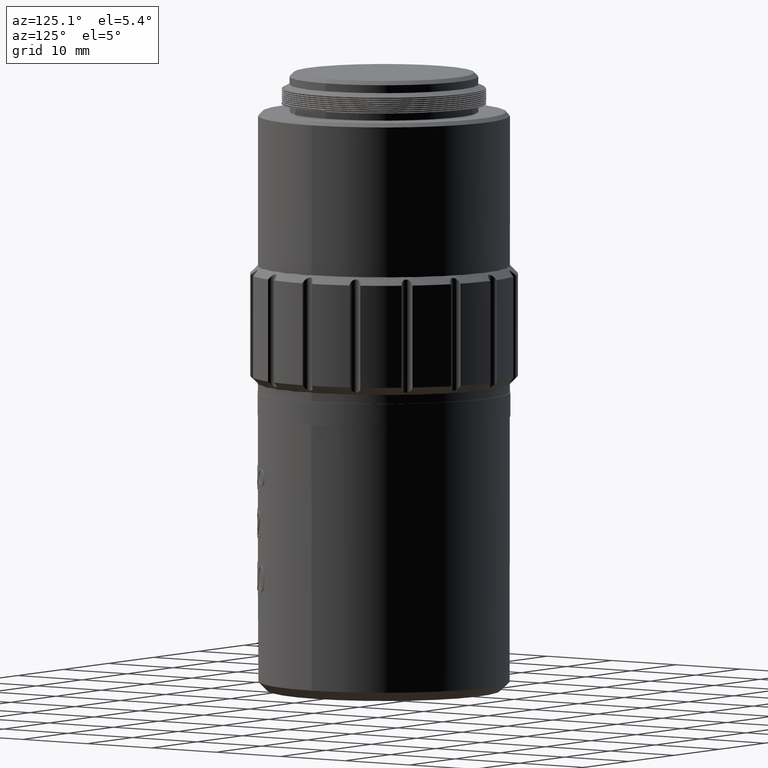
[diagram: clean part render]
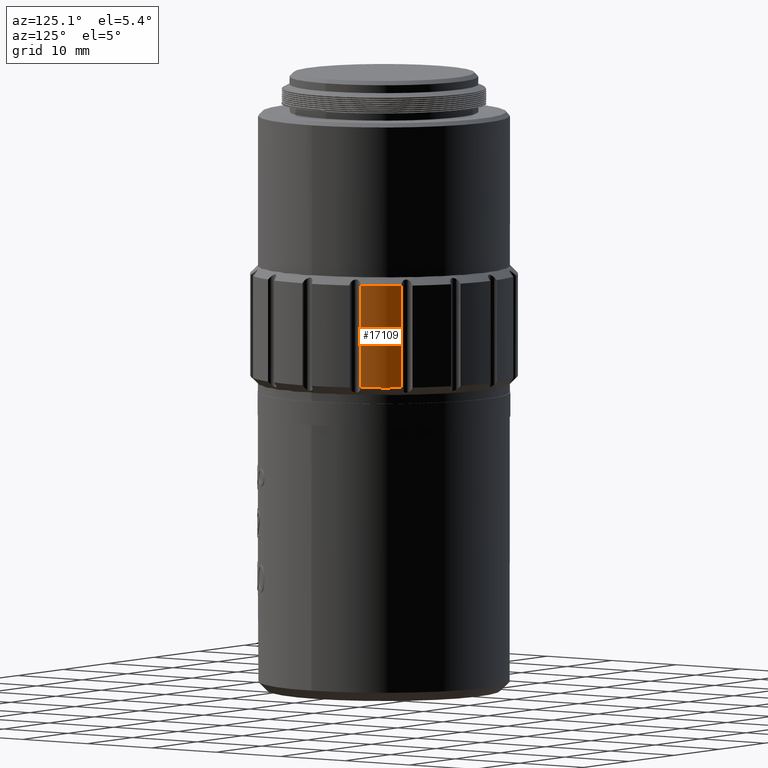
[diagram: same view with one face highlighted and labeled with its STEP entity id]
A machine part, auxiliary view. The second image highlights one B-rep face of the part: STEP entity #17109.
In plain terms, the highlighted cylindrical surface (partial cylindrical patch) has radius 17 mm, axis along (-0, -0, -1).
Its self-contained STEP definition (entity closure, byte-faithful):
#553 = CARTESIAN_POINT ( 'NONE',  ( -107.2416309191018513, 29.16934530644275370, 6.500000000000000000 ) ) ;
#857 = CARTESIAN_POINT ( 'NONE',  ( -110.1520451866486496, 33.52508807099724208, 6.499999999999998224 ) ) ;
#1181 = DIRECTION ( 'NONE',  ( -0.000000000000000000, -0.000000000000000000, -1.000000000000000000 ) ) ;
#1195 = DIRECTION ( 'NONE',  ( 0.000000000000000000, 0.000000000000000000, 1.000000000000000000 ) ) ;
#2184 = CARTESIAN_POINT ( 'NONE',  ( -107.2416309191018513, 29.16934530644275370, -6.499999999999999112 ) ) ;
#2469 = VERTEX_POINT ( 'NONE', #5927 ) ;
#2567 = FACE_OUTER_BOUND ( 'NONE', #12708, .T. ) ;
#2826 = ORIENTED_EDGE ( 'NONE', *, *, #14293, .T. ) ;
#2869 = VECTOR ( 'NONE', #9863, 1000.000000000000000 ) ;
#3416 = VERTEX_POINT ( 'NONE', #857 ) ;
#5099 = CARTESIAN_POINT ( 'NONE',  ( -122.6630341068842540, 22.01530283243863195, -8.750073880203553145 ) ) ;
#5195 = DIRECTION ( 'NONE',  ( -1.000000000000000000, 0.000000000000000000, 0.000000000000000000 ) ) ;
#5927 = CARTESIAN_POINT ( 'NONE',  ( -110.1520451866486496, 33.52508807099724208, -6.499999999999999112 ) ) ;
#6705 = CARTESIAN_POINT ( 'NONE',  ( -122.6630341068842540, 22.01530283243863195, -6.499999999999999112 ) ) ;
#7758 = EDGE_CURVE ( 'NONE', #3416, #13629, #17548, .T. ) ;
#8105 = AXIS2_PLACEMENT_3D ( 'NONE', #5099, #1181, #5195 ) ;
#8261 = CYLINDRICAL_SURFACE ( 'NONE', #8105, 16.99999999999998579 ) ;
#8386 = ORIENTED_EDGE ( 'NONE', *, *, #13752, .T. ) ;
#9713 = CIRCLE ( 'NONE', #13573, 17.00000000000000000 ) ;
#9863 = DIRECTION ( 'NONE',  ( -0.000000000000000000, -0.000000000000000000, 1.000000000000000000 ) ) ;
#10412 = DIRECTION ( 'NONE',  ( -1.000000000000000000, 0.000000000000000000, 0.000000000000000000 ) ) ;
#10518 = VERTEX_POINT ( 'NONE', #2184 ) ;
#11056 = DIRECTION ( 'NONE',  ( 1.000000000000000000, 0.000000000000000000, 0.000000000000000000 ) ) ;
#11164 = DIRECTION ( 'NONE',  ( 0.000000000000000000, 0.000000000000000000, -1.000000000000000000 ) ) ;
#11256 = CARTESIAN_POINT ( 'NONE',  ( -107.2416309191018513, 29.16934530644275370, -5.050000000000006928 ) ) ;
#12223 = AXIS2_PLACEMENT_3D ( 'NONE', #17357, #14763, #10412 ) ;
#12708 = EDGE_LOOP ( 'NONE', ( #17338, #17517, #8386, #2826 ) ) ;
#13573 = AXIS2_PLACEMENT_3D ( 'NONE', #6705, #1195, #11056 ) ;
#13629 = VERTEX_POINT ( 'NONE', #553 ) ;
#13752 = EDGE_CURVE ( 'NONE', #10518, #2469, #9713, .T. ) ;
#14293 = EDGE_CURVE ( 'NONE', #2469, #3416, #18295, .T. ) ;
#14763 = DIRECTION ( 'NONE',  ( -0.000000000000000000, -0.000000000000000000, -1.000000000000000000 ) ) ;
#15526 = LINE ( 'NONE', #11256, #18139 ) ;
#16298 = EDGE_CURVE ( 'NONE', #13629, #10518, #15526, .T. ) ;
#16635 = CARTESIAN_POINT ( 'NONE',  ( -110.1520451866486496, 33.52508807099724208, -5.050000000000006928 ) ) ;
#17109 = ADVANCED_FACE ( 'NONE', ( #2567 ), #8261, .T. ) ;
#17338 = ORIENTED_EDGE ( 'NONE', *, *, #7758, .T. ) ;
#17357 = CARTESIAN_POINT ( 'NONE',  ( -122.6630341068842540, 22.01530283243863195, 6.500000000000000000 ) ) ;
#17517 = ORIENTED_EDGE ( 'NONE', *, *, #16298, .T. ) ;
#17548 = CIRCLE ( 'NONE', #12223, 16.99999999999998579 ) ;
#18139 = VECTOR ( 'NONE', #11164, 1000.000000000000000 ) ;
#18295 = LINE ( 'NONE', #16635, #2869 ) ;